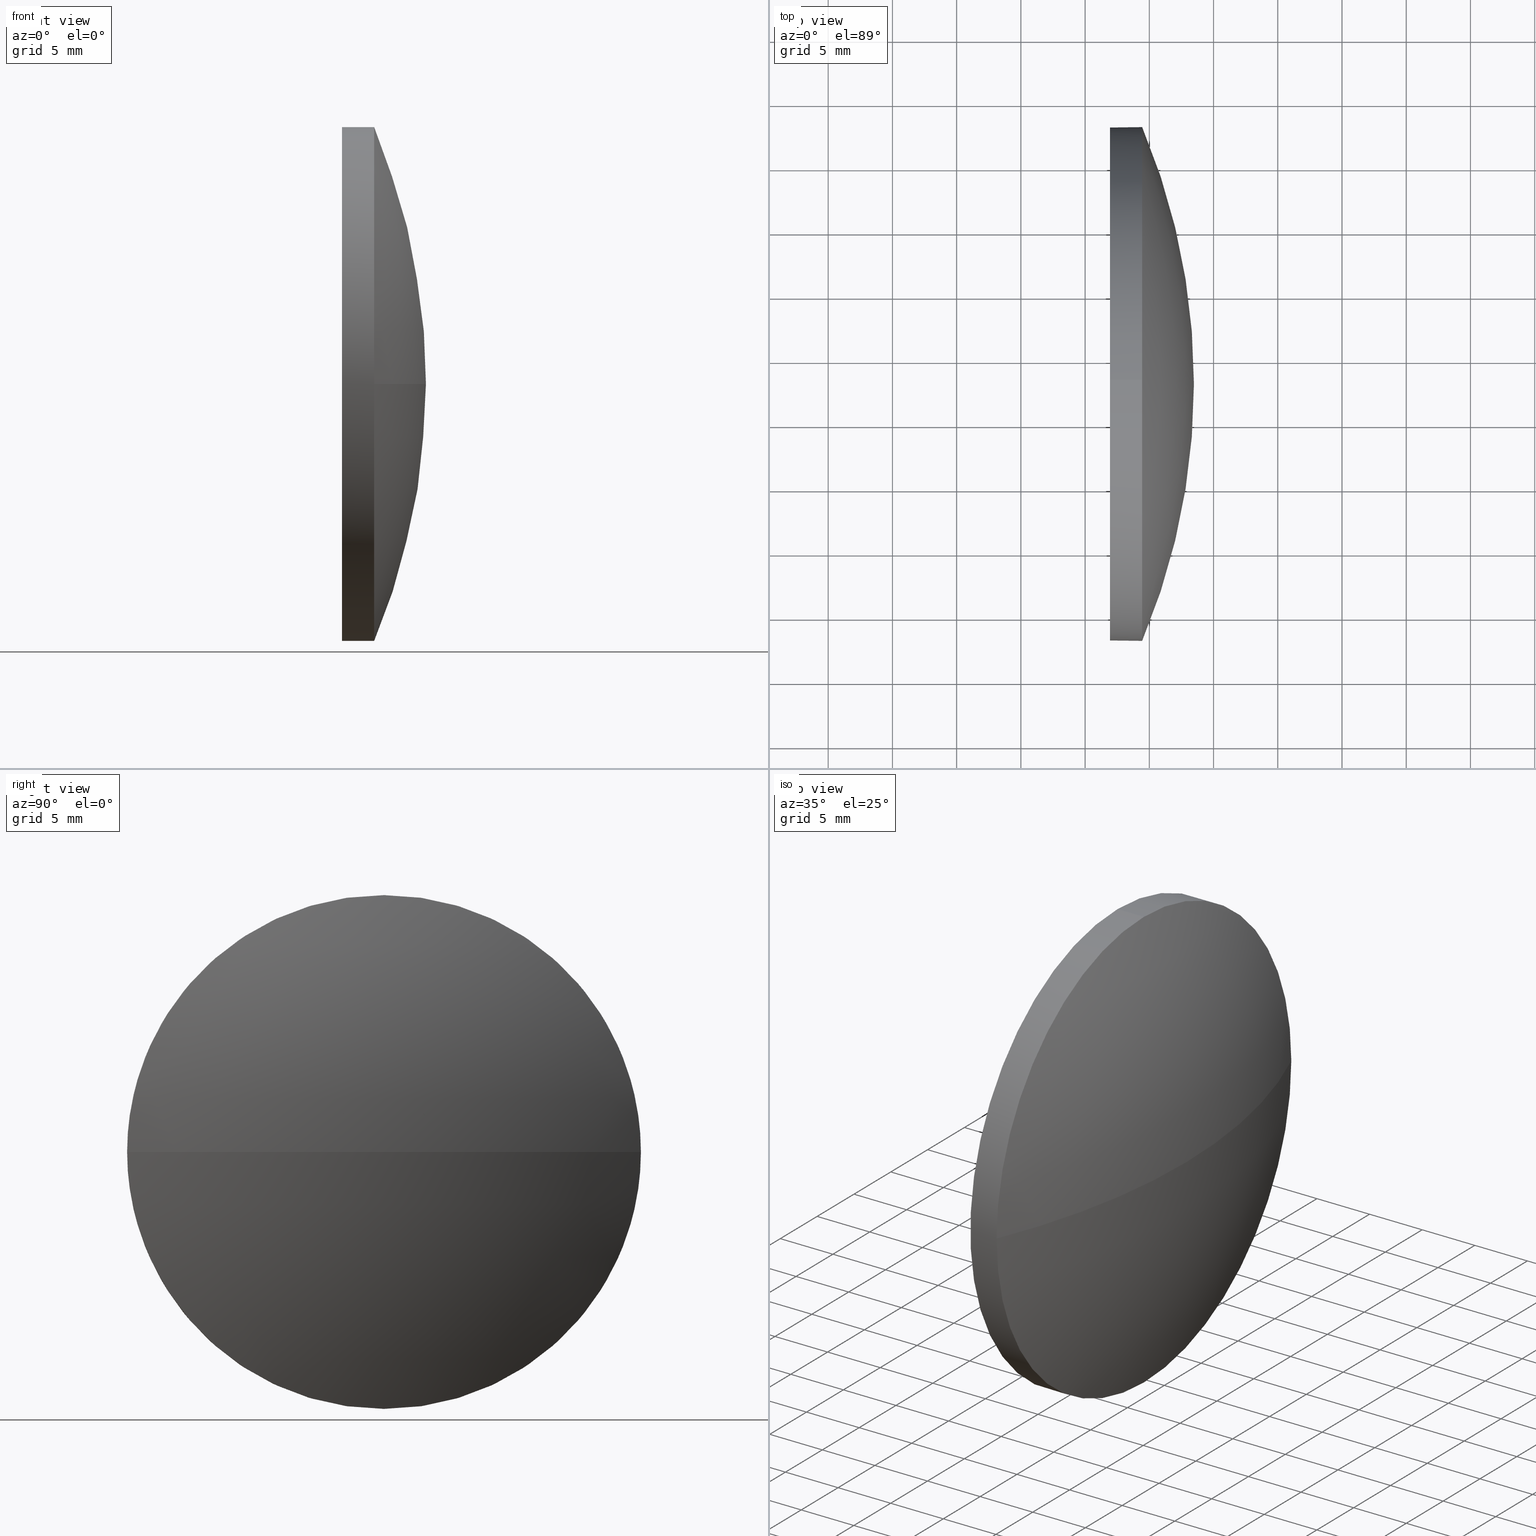
[diagram: canonical four-view strip — front | top / right | iso, engineering-drawing reading convention]
A machine part, canonical four-view strip (front | top / right | iso — engineering-drawing reading convention). The complete STEP part file that produces these views, byte-faithful:
ISO-10303-21;
HEADER;
FILE_DESCRIPTION (( 'STEP AP214' ),
    '1' );
FILE_NAME ('100230.STEP',
    '2019-05-24T06:17:40',
    ( '' ),
    ( '' ),
    'SwSTEP 2.0',
    'SolidWorks 2016',
    '' );
FILE_SCHEMA (( 'AUTOMOTIVE_DESIGN' ));
ENDSEC;

DATA;
#1 = EDGE_CURVE ( 'NONE', #98, #41, #87, .T. ) ;
#2 = PRESENTATION_LAYER_ASSIGNMENT (  '', '', ( #29 ) ) ;
#3 = CARTESIAN_POINT ( 'NONE',  ( 492.9783732826454100, 28.03450689245858000, 0.0000000000000000000 ) ) ;
#4 = DIRECTION ( 'NONE',  ( -1.000000000000000000, -0.0000000000000000000, -0.0000000000000000000 ) ) ;
#5 = CIRCLE ( 'NONE', #183, 20.00000000000000400 ) ;
#6 = ORIENTED_EDGE ( 'NONE', *, *, #1, .T. ) ;
#7 = DIRECTION ( 'NONE',  ( 0.0000000000000000000, 0.0000000000000000000, 1.000000000000000000 ) ) ;
#8 = APPLICATION_CONTEXT ( 'automotive_design' ) ;
#9 = ORIENTED_EDGE ( 'NONE', *, *, #85, .F. ) ;
#10 = FILL_AREA_STYLE ('',( #101 ) ) ;
#11 =( NAMED_UNIT ( * ) PLANE_ANGLE_UNIT ( ) SI_UNIT ( $, .RADIAN. ) );
#12 = DIRECTION ( 'NONE',  ( 0.0000000000000000000, 0.0000000000000000000, 1.000000000000000000 ) ) ;
#13 = ORIENTED_EDGE ( 'NONE', *, *, #118, .F. ) ;
#14 = ORIENTED_EDGE ( 'NONE', *, *, #175, .F. ) ;
#15 = DIRECTION ( 'NONE',  ( 1.000000000000000000, 0.0000000000000000000, 0.0000000000000000000 ) ) ;
#16 = PRESENTATION_STYLE_ASSIGNMENT (( #134 ) ) ;
#17 = ADVANCED_FACE ( 'NONE', ( #91 ), #139, .T. ) ;
#18 = DIRECTION ( 'NONE',  ( -1.000000000000000000, -0.0000000000000000000, -0.0000000000000000000 ) ) ;
#19 = SURFACE_STYLE_FILL_AREA ( #128 ) ;
#20 = CARTESIAN_POINT ( 'NONE',  ( 499.4433268936313700, 28.03450689245858400, -20.00000000000000400 ) ) ;
#21 = VERTEX_POINT ( 'NONE', #152 ) ;
#22 =( LENGTH_UNIT ( ) NAMED_UNIT ( * ) SI_UNIT ( .MILLI., .METRE. ) );
#23 = PRODUCT_RELATED_PRODUCT_CATEGORY ( 'part', '', ( #132 ) ) ;
#24 = FILL_AREA_STYLE_COLOUR ( '', #137 ) ;
#25 = APPLICATION_PROTOCOL_DEFINITION ( 'draft international standard', 'automotive_design', 1998, #95 ) ;
#26 = EDGE_LOOP ( 'NONE', ( #55, #6 ) ) ;
#27 = EDGE_LOOP ( 'NONE', ( #186, #71, #62, #159, #184 ) ) ;
#28 = ADVANCED_FACE ( 'NONE', ( #185 ), #58, .T. ) ;
#29 = STYLED_ITEM ( 'NONE', ( #171 ), #121 ) ;
#30 = ORIENTED_EDGE ( 'NONE', *, *, #69, .T. ) ;
#31 = CARTESIAN_POINT ( 'NONE',  ( 499.4433268936313700, 28.03450689245858000, 0.0000000000000000000 ) ) ;
#32 = CARTESIAN_POINT ( 'NONE',  ( 451.8305353303560400, 28.03450689245860500, 0.0000000000000000000 ) ) ;
#33 = DIRECTION ( 'NONE',  ( -1.000000000000000000, -0.0000000000000000000, -0.0000000000000000000 ) ) ;
#34 = DIRECTION ( 'NONE',  ( 0.0000000000000000000, 0.0000000000000000000, 1.000000000000000000 ) ) ;
#35 = AXIS2_PLACEMENT_3D ( 'NONE', #78, #153, #106 ) ;
#36 = DIRECTION ( 'NONE',  ( -1.000000000000000000, -0.0000000000000000000, -0.0000000000000000000 ) ) ;
#37 = CARTESIAN_POINT ( 'NONE',  ( 499.4433268936313700, 28.03450689245858000, 0.0000000000000000000 ) ) ;
#38 = ORIENTED_EDGE ( 'NONE', *, *, #103, .F. ) ;
#39 = DIRECTION ( 'NONE',  ( 0.0000000000000000000, -1.000000000000000000, -1.224646799147353200E-016 ) ) ;
#40 = CIRCLE ( 'NONE', #174, 20.00000000000000400 ) ;
#41 = VERTEX_POINT ( 'NONE', #74 ) ;
#42 = AXIS2_PLACEMENT_3D ( 'NONE', #32, #143, #86 ) ;
#43 = ORIENTED_EDGE ( 'NONE', *, *, #85, .T. ) ;
#44 = VERTEX_POINT ( 'NONE', #104 ) ;
#45 = DIRECTION ( 'NONE',  ( 0.0000000000000000000, 0.0000000000000000000, -1.000000000000000000 ) ) ;
#46 =( NAMED_UNIT ( * ) SI_UNIT ( $, .STERADIAN. ) SOLID_ANGLE_UNIT ( ) );
#47 = VERTEX_POINT ( 'NONE', #124 ) ;
#48 = PRESENTATION_LAYER_ASSIGNMENT (  '', '', ( #73 ) ) ;
#49 = UNCERTAINTY_MEASURE_WITH_UNIT (LENGTH_MEASURE( 1.000000000000000100E-005 ), #148, 'distance_accuracy_value', 'NONE');
#50 = CARTESIAN_POINT ( 'NONE',  ( 499.4433268936313700, 8.034506892458615800, 0.0000000000000000000 ) ) ;
#51 = FACE_OUTER_BOUND ( 'NONE', #26, .T. ) ;
#52 = VECTOR ( 'NONE', #77, 1000.000000000000000 ) ;
#53 =( LENGTH_UNIT ( ) NAMED_UNIT ( * ) SI_UNIT ( .MILLI., .METRE. ) );
#54 =( GEOMETRIC_REPRESENTATION_CONTEXT ( 3 ) GLOBAL_UNCERTAINTY_ASSIGNED_CONTEXT ( ( #154 ) ) GLOBAL_UNIT_ASSIGNED_CONTEXT ( ( #53, #113, #83 ) ) REPRESENTATION_CONTEXT ( 'NONE', 'WORKASPACE' ) );
#55 = ORIENTED_EDGE ( 'NONE', *, *, #155, .T. ) ;
#56 = ORIENTED_EDGE ( 'NONE', *, *, #111, .T. ) ;
#57 = AXIS2_PLACEMENT_3D ( 'NONE', #81, #144, #39 ) ;
#58 = CYLINDRICAL_SURFACE ( 'NONE', #100, 20.00000000000000400 ) ;
#59 = DIRECTION ( 'NONE',  ( 0.0000000000000000000, 0.0000000000000000000, 1.000000000000000000 ) ) ;
#60 = CARTESIAN_POINT ( 'NONE',  ( 496.9433268936313700, 28.03450689245858400, -20.00000000000000400 ) ) ;
#61 = DIRECTION ( 'NONE',  ( -1.000000000000000000, -0.0000000000000000000, -0.0000000000000000000 ) ) ;
#62 = ORIENTED_EDGE ( 'NONE', *, *, #175, .T. ) ;
#63 = CARTESIAN_POINT ( 'NONE',  ( 496.9433268936313700, 28.03450689245858000, 0.0000000000000000000 ) ) ;
#64 = SURFACE_SIDE_STYLE ('',( #70 ) ) ;
#65 = DIRECTION ( 'NONE',  ( 1.000000000000000000, 0.0000000000000000000, 0.0000000000000000000 ) ) ;
#66 = DIRECTION ( 'NONE',  ( -1.000000000000000000, -0.0000000000000000000, -0.0000000000000000000 ) ) ;
#67 = AXIS2_PLACEMENT_3D ( 'NONE', #168, #12, #15 ) ;
#68 = AXIS2_PLACEMENT_3D ( 'NONE', #177, #61, #59 ) ;
#69 = EDGE_CURVE ( 'NONE', #135, #98, #112, .T. ) ;
#70 = SURFACE_STYLE_FILL_AREA ( #10 ) ;
#71 = ORIENTED_EDGE ( 'NONE', *, *, #103, .T. ) ;
#72 = CARTESIAN_POINT ( 'NONE',  ( 496.9433268936313700, 28.03450689245858000, 0.0000000000000000000 ) ) ;
#73 = STYLED_ITEM ( 'NONE', ( #16 ), #130 ) ;
#74 = CARTESIAN_POINT ( 'NONE',  ( 496.9433268936313700, 28.03450689245858000, 20.00000000000000400 ) ) ;
#75 = SPHERICAL_SURFACE ( 'NONE', #42, 51.64279156327529600 ) ;
#76 = CLOSED_SHELL ( 'NONE', ( #17, #160, #99, #28, #176 ) ) ;
#77 = DIRECTION ( 'NONE',  ( -1.000000000000000000, -0.0000000000000000000, -0.0000000000000000000 ) ) ;
#78 = CARTESIAN_POINT ( 'NONE',  ( 499.4433268936313700, 28.03450689245858000, 0.0000000000000000000 ) ) ;
#79 = CIRCLE ( 'NONE', #158, 20.00000000000000400 ) ;
#80 = CARTESIAN_POINT ( 'NONE',  ( 451.8305353303560400, 28.03450689245860500, 0.0000000000000000000 ) ) ;
#81 = CARTESIAN_POINT ( 'NONE',  ( 451.8305353303560400, 28.03450689245860500, 0.0000000000000000000 ) ) ;
#82 = DIRECTION ( 'NONE',  ( -1.000000000000000000, -0.0000000000000000000, -0.0000000000000000000 ) ) ;
#83 =( NAMED_UNIT ( * ) SI_UNIT ( $, .STERADIAN. ) SOLID_ANGLE_UNIT ( ) );
#84 = UNCERTAINTY_MEASURE_WITH_UNIT (LENGTH_MEASURE( 1.000000000000000100E-005 ), #22, 'distance_accuracy_value', 'NONE');
#85 = EDGE_CURVE ( 'NONE', #47, #135, #40, .T. ) ;
#86 = DIRECTION ( 'NONE',  ( 0.0000000000000000000, -1.000000000000000000, 0.0000000000000000000 ) ) ;
#87 = CIRCLE ( 'NONE', #162, 20.00000000000000400 ) ;
#88 = CARTESIAN_POINT ( 'NONE',  ( 492.9783732826454100, 28.03450689245858000, 20.00000000000000400 ) ) ;
#89 = SURFACE_STYLE_USAGE ( .BOTH. , #64 ) ;
#90 = CARTESIAN_POINT ( 'NONE',  ( 499.4433268936313700, 28.03450689245858000, 0.0000000000000000000 ) ) ;
#91 = FACE_OUTER_BOUND ( 'NONE', #116, .T. ) ;
#92 = AXIS2_PLACEMENT_3D ( 'NONE', #182, #65, #181 ) ;
#93 = CIRCLE ( 'NONE', #169, 20.00000000000000400 ) ;
#94 = ORIENTED_EDGE ( 'NONE', *, *, #133, .F. ) ;
#95 = APPLICATION_CONTEXT ( 'automotive_design' ) ;
#96 = MECHANICAL_DESIGN_GEOMETRIC_PRESENTATION_REPRESENTATION (  '', ( #73 ), #54 ) ;
#97 =( GEOMETRIC_REPRESENTATION_CONTEXT ( 3 ) GLOBAL_UNCERTAINTY_ASSIGNED_CONTEXT ( ( #49 ) ) GLOBAL_UNIT_ASSIGNED_CONTEXT ( ( #148, #11, #146 ) ) REPRESENTATION_CONTEXT ( 'NONE', 'WORKASPACE' ) );
#98 = VERTEX_POINT ( 'NONE', #60 ) ;
#99 = ADVANCED_FACE ( 'NONE', ( #131 ), #75, .T. ) ;
#100 = AXIS2_PLACEMENT_3D ( 'NONE', #3, #18, #102 ) ;
#101 = FILL_AREA_STYLE_COLOUR ( '', #164 ) ;
#102 = DIRECTION ( 'NONE',  ( 0.0000000000000000000, 0.0000000000000000000, 1.000000000000000000 ) ) ;
#103 = EDGE_CURVE ( 'NONE', #135, #150, #115, .T. ) ;
#104 = CARTESIAN_POINT ( 'NONE',  ( 503.4733268936313400, 28.03450689245860200, 0.0000000000000000000 ) ) ;
#105 = CIRCLE ( 'NONE', #57, 51.64279156327529600 ) ;
#106 = DIRECTION ( 'NONE',  ( 0.0000000000000000000, 0.0000000000000000000, 1.000000000000000000 ) ) ;
#107 = DIRECTION ( 'NONE',  ( 0.0000000000000000000, 0.0000000000000000000, 1.000000000000000000 ) ) ;
#108 = VECTOR ( 'NONE', #33, 1000.000000000000000 ) ;
#109 = APPLICATION_PROTOCOL_DEFINITION ( 'draft international standard', 'automotive_design', 1998, #8 ) ;
#110 = ORIENTED_EDGE ( 'NONE', *, *, #151, .F. ) ;
#111 = EDGE_CURVE ( 'NONE', #44, #47, #105, .T. ) ;
#112 = LINE ( 'NONE', #122, #52 ) ;
#113 =( NAMED_UNIT ( * ) PLANE_ANGLE_UNIT ( ) SI_UNIT ( $, .RADIAN. ) );
#114 =( GEOMETRIC_REPRESENTATION_CONTEXT ( 3 ) GLOBAL_UNCERTAINTY_ASSIGNED_CONTEXT ( ( #84 ) ) GLOBAL_UNIT_ASSIGNED_CONTEXT ( ( #22, #145, #46 ) ) REPRESENTATION_CONTEXT ( 'NONE', 'WORKASPACE' ) );
#115 = CIRCLE ( 'NONE', #35, 20.00000000000000400 ) ;
#116 = EDGE_LOOP ( 'NONE', ( #43, #30, #125, #110, #172 ) ) ;
#117 = PRODUCT_DEFINITION_CONTEXT ( 'detailed design', #95, 'design' ) ;
#118 = EDGE_CURVE ( 'NONE', #21, #47, #5, .T. ) ;
#119 = ORIENTED_EDGE ( 'NONE', *, *, #133, .T. ) ;
#120 = PRODUCT_DEFINITION ( 'δ֪', '', #180, #117 ) ;
#121 = MANIFOLD_SOLID_BREP ( '��ת1', #76 ) ;
#122 = CARTESIAN_POINT ( 'NONE',  ( 492.9783732826454100, 28.03450689245858400, -20.00000000000000400 ) ) ;
#123 = PRODUCT_DEFINITION_SHAPE ( 'NONE', 'NONE',  #120 ) ;
#124 = CARTESIAN_POINT ( 'NONE',  ( 499.4433268936313700, 48.03450689245857300, 2.449293598294701800E-015 ) ) ;
#125 = ORIENTED_EDGE ( 'NONE', *, *, #155, .F. ) ;
#126 = DIRECTION ( 'NONE',  ( -1.000000000000000000, -0.0000000000000000000, -0.0000000000000000000 ) ) ;
#127 = DIRECTION ( 'NONE',  ( 0.0000000000000000000, 0.0000000000000000000, 1.000000000000000000 ) ) ;
#128 = FILL_AREA_STYLE ('',( #24 ) ) ;
#129 = CARTESIAN_POINT ( 'NONE',  ( 451.8305353303560400, 28.03450689245860500, 0.0000000000000000000 ) ) ;
#130 = ADVANCED_BREP_SHAPE_REPRESENTATION ( '100230', ( #121, #67 ), #114 ) ;
#131 = FACE_OUTER_BOUND ( 'NONE', #161, .T. ) ;
#132 = PRODUCT ( '100230', '100230', '', ( #157 ) ) ;
#133 = EDGE_CURVE ( 'NONE', #44, #150, #136, .T. ) ;
#134 = SURFACE_STYLE_USAGE ( .BOTH. , #156 ) ;
#135 = VERTEX_POINT ( 'NONE', #20 ) ;
#136 = CIRCLE ( 'NONE', #138, 51.64279156327528100 ) ;
#137 = COLOUR_RGB ( '',1.000000000000000000, 1.000000000000000000, 1.000000000000000000 ) ;
#138 = AXIS2_PLACEMENT_3D ( 'NONE', #129, #45, #147 ) ;
#139 = CYLINDRICAL_SURFACE ( 'NONE', #68, 20.00000000000000400 ) ;
#140 = ORIENTED_EDGE ( 'NONE', *, *, #111, .F. ) ;
#141 = DIRECTION ( 'NONE',  ( 0.0000000000000000000, 0.0000000000000000000, 1.000000000000000000 ) ) ;
#142 = MECHANICAL_DESIGN_GEOMETRIC_PRESENTATION_REPRESENTATION (  '', ( #29 ), #97 ) ;
#143 = DIRECTION ( 'NONE',  ( 0.0000000000000000000, 0.0000000000000000000, 1.000000000000000000 ) ) ;
#144 = DIRECTION ( 'NONE',  ( 0.0000000000000000000, -1.224646799147353200E-016, 1.000000000000000000 ) ) ;
#145 =( NAMED_UNIT ( * ) PLANE_ANGLE_UNIT ( ) SI_UNIT ( $, .RADIAN. ) );
#146 =( NAMED_UNIT ( * ) SI_UNIT ( $, .STERADIAN. ) SOLID_ANGLE_UNIT ( ) );
#147 = DIRECTION ( 'NONE',  ( -1.000000000000000000, 0.0000000000000000000, 0.0000000000000000000 ) ) ;
#148 =( LENGTH_UNIT ( ) NAMED_UNIT ( * ) SI_UNIT ( .MILLI., .METRE. ) );
#149 = EDGE_LOOP ( 'NONE', ( #94, #56, #13, #14 ) ) ;
#150 = VERTEX_POINT ( 'NONE', #50 ) ;
#151 = EDGE_CURVE ( 'NONE', #21, #41, #170, .T. ) ;
#152 = CARTESIAN_POINT ( 'NONE',  ( 499.4433268936313700, 28.03450689245858000, 20.00000000000000400 ) ) ;
#153 = DIRECTION ( 'NONE',  ( -1.000000000000000000, -0.0000000000000000000, -0.0000000000000000000 ) ) ;
#154 = UNCERTAINTY_MEASURE_WITH_UNIT (LENGTH_MEASURE( 1.000000000000000100E-005 ), #53, 'distance_accuracy_value', 'NONE');
#155 = EDGE_CURVE ( 'NONE', #41, #98, #79, .T. ) ;
#156 = SURFACE_SIDE_STYLE ('',( #19 ) ) ;
#157 = PRODUCT_CONTEXT ( 'NONE', #8, 'mechanical' ) ;
#158 = AXIS2_PLACEMENT_3D ( 'NONE', #63, #66, #34 ) ;
#159 = ORIENTED_EDGE ( 'NONE', *, *, #151, .T. ) ;
#160 = ADVANCED_FACE ( 'NONE', ( #167 ), #173, .T. ) ;
#161 = EDGE_LOOP ( 'NONE', ( #140, #119, #38, #9 ) ) ;
#162 = AXIS2_PLACEMENT_3D ( 'NONE', #72, #4, #179 ) ;
#163 = SHAPE_DEFINITION_REPRESENTATION ( #123, #130 ) ;
#164 = COLOUR_RGB ( '',1.000000000000000000, 1.000000000000000000, 1.000000000000000000 ) ;
#165 = DIRECTION ( 'NONE',  ( 0.0000000000000000000, -1.000000000000000000, 0.0000000000000000000 ) ) ;
#166 = PLANE ( 'NONE',  #92 ) ;
#167 = FACE_OUTER_BOUND ( 'NONE', #149, .T. ) ;
#168 = CARTESIAN_POINT ( 'NONE',  ( 0.0000000000000000000, 0.0000000000000000000, 0.0000000000000000000 ) ) ;
#169 = AXIS2_PLACEMENT_3D ( 'NONE', #90, #36, #127 ) ;
#170 = LINE ( 'NONE', #88, #108 ) ;
#171 = PRESENTATION_STYLE_ASSIGNMENT (( #89 ) ) ;
#172 = ORIENTED_EDGE ( 'NONE', *, *, #118, .T. ) ;
#173 = SPHERICAL_SURFACE ( 'NONE', #178, 51.64279156327529600 ) ;
#174 = AXIS2_PLACEMENT_3D ( 'NONE', #31, #126, #141 ) ;
#175 = EDGE_CURVE ( 'NONE', #150, #21, #93, .T. ) ;
#176 = ADVANCED_FACE ( 'NONE', ( #51 ), #166, .F. ) ;
#177 = CARTESIAN_POINT ( 'NONE',  ( 492.9783732826454100, 28.03450689245858000, 0.0000000000000000000 ) ) ;
#178 = AXIS2_PLACEMENT_3D ( 'NONE', #80, #107, #165 ) ;
#179 = DIRECTION ( 'NONE',  ( 0.0000000000000000000, 0.0000000000000000000, 1.000000000000000000 ) ) ;
#180 = PRODUCT_DEFINITION_FORMATION_WITH_SPECIFIED_SOURCE ( '�κ�', '', #132, .NOT_KNOWN. ) ;
#181 = DIRECTION ( 'NONE',  ( 0.0000000000000000000, 0.0000000000000000000, -1.000000000000000000 ) ) ;
#182 = CARTESIAN_POINT ( 'NONE',  ( 496.9433268936313700, 28.03450689245858000, 0.0000000000000000000 ) ) ;
#183 = AXIS2_PLACEMENT_3D ( 'NONE', #37, #82, #7 ) ;
#184 = ORIENTED_EDGE ( 'NONE', *, *, #1, .F. ) ;
#185 = FACE_OUTER_BOUND ( 'NONE', #27, .T. ) ;
#186 = ORIENTED_EDGE ( 'NONE', *, *, #69, .F. ) ;
ENDSEC;
END-ISO-10303-21;
